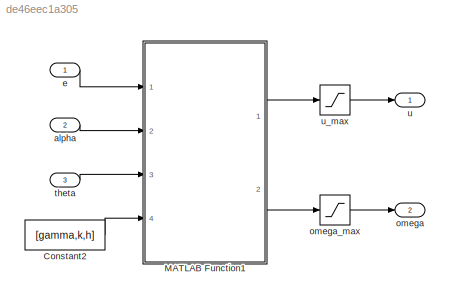
MODEL slx_de46eec1a305
KIND model
CONFIG AbsTol = auto
CONFIG EnableMultiTasking = off
CONFIG FixedStep = 50e-3
CONFIG MaxStep = auto
CONFIG MinStep = auto
CONFIG RelTol = 1e-3
CONFIG SampleTimeConstraint = Unconstrained
CONFIG SolverName = FixedStepDiscrete
CONFIG StartTime = 0.0
CONFIG StopTime = Inf
BLOCK [Constant] Constant2
  Value = [gamma,k,h]
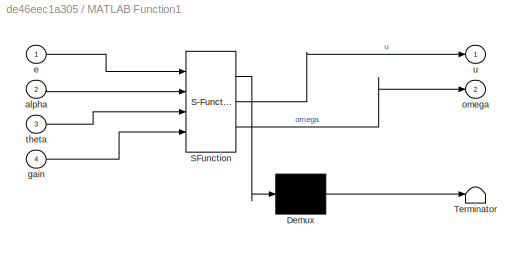
BLOCK [SubSystem] MATLAB Function1
  ErrorFcn = Stateflow.Translate.translate
  PermitHierarchicalResolution = ExplicitOnly
  Ports = [4, 2]
  RequestExecContextInheritance = off
  SFBlockType = MATLAB Function
  TreatAsAtomicUnit = on
BLOCK [Demux] MATLAB Function1/ Demux 
  Outputs = 1
  Ports = [1, 1]
BLOCK [S-Function] MATLAB Function1/ SFunction 
  EnableBusSupport = on
  FunctionName = sf_sfun
  PortCounts = [4 3]
  Ports = [4, 3]
  SFcnIsStateOwnerBlock = off
  SFunctionDeploymentMode = off
  Tag = Stateflow S-Function 1
BLOCK [Terminator] MATLAB Function1/ Terminator 
BLOCK [Inport] MATLAB Function1/alpha
  Port = 2
BLOCK [Inport] MATLAB Function1/e
BLOCK [Inport] MATLAB Function1/gain
  Port = 4
BLOCK [Outport] MATLAB Function1/omega
  Port = 2
BLOCK [Inport] MATLAB Function1/theta
  Port = 3
BLOCK [Outport] MATLAB Function1/u
BLOCK [Inport] alpha
  Port = 2
BLOCK [Inport] e
BLOCK [Outport] omega
  Port = 2
BLOCK [Saturate] omega_max
  LowerLimit = -omega_max
  UpperLimit = omega_max
BLOCK [Inport] theta
  Port = 3
BLOCK [Outport] u
BLOCK [Saturate] u_max
  LowerLimit = -u_max
  UpperLimit = u_max
LINE Constant2:1 -> MATLAB Function1:4
LINE MATLAB Function1:1 -> u_max:1
LINE MATLAB Function1:2 -> omega_max:1
LINE alpha:1 -> MATLAB Function1:2
LINE e:1 -> MATLAB Function1:1
LINE omega_max:1 -> omega:1
LINE theta:1 -> MATLAB Function1:3
LINE u_max:1 -> u:1
CHART MATLAB Function1 states=1 transitions=1
  STATE_LABEL 'eML_blk_kernel()'
  STATE_LABEL 'SCRIPT:\nfunction [u,omega] = control(e,alpha,theta,gain)\n\ngamma = gain(1); k = gain(2); h = gain(3);\n\nu = gamma*e*cos(alpha);\nomega = k*alpha + gamma*((alpha + h*theta)/alpha)*cos(alpha)*sin(alpha);\n'
CHART  states=0 transitions=0
